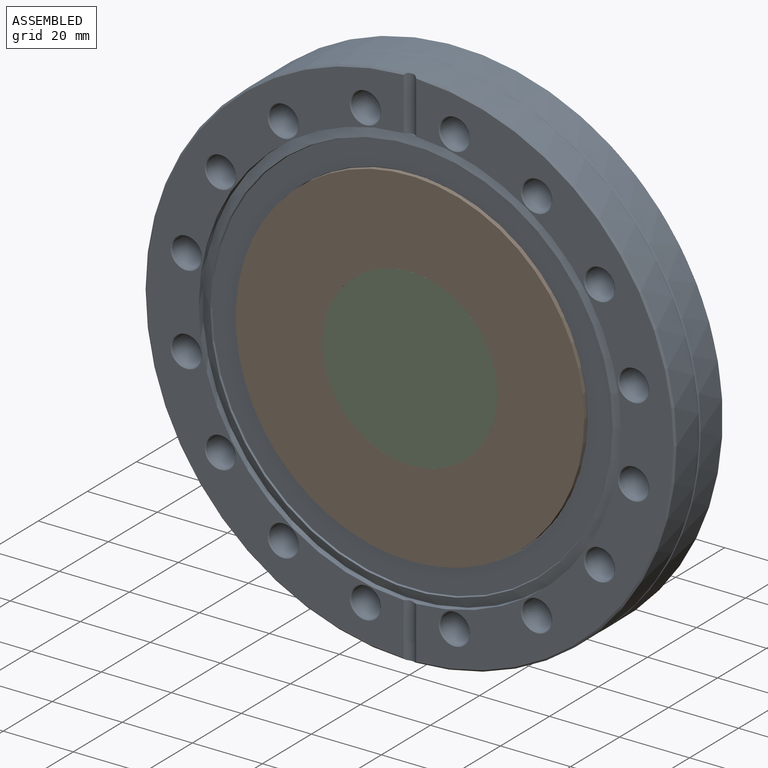
[diagram: assembled view]
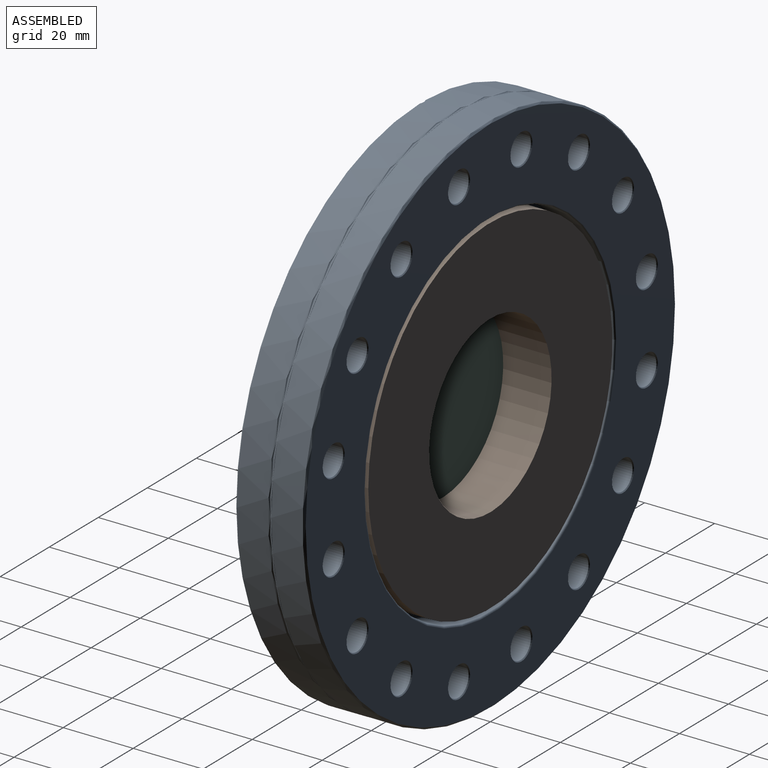
[diagram: assembled view, second angle]
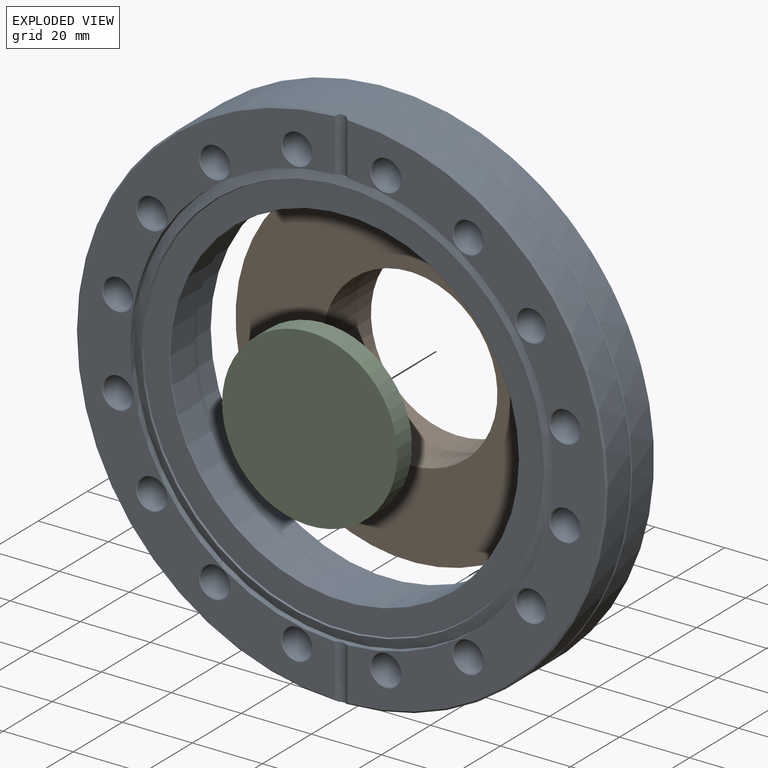
[diagram: exploded view]
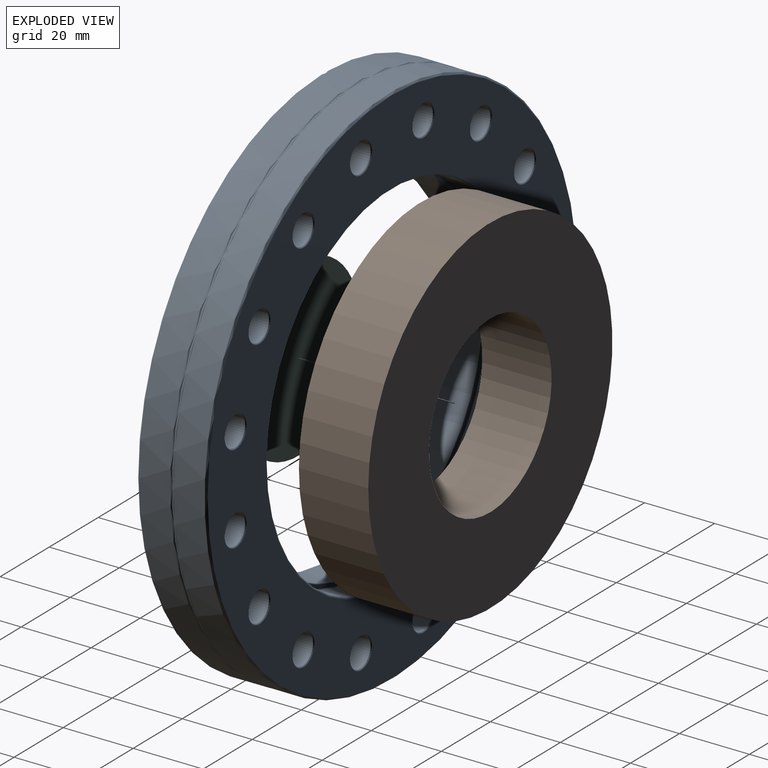
[diagram: exploded view, second angle]
ASSEMBLY  parts=3 mates=4
PART A: 71 faces, bbox 164.7x164.7x19.8 mm
  f0: cylinder r=75.82mm len=151.64mm, axis (0,0,1), area 4267.5mm2, adj f1,f2,f5,f11,f66
  f1: cylinder r=2.38mm len=15.51mm, axis (0,1,0), area 61.4mm2, adj f0,f2,f3,f4,f5,f6
  f2: cone r=75.82mm half-angle=45deg, axis (0,0,-1), area 168.5mm2, adj f0,f1,f3,f11
  f3: plane 150.58x73.54mm, normal (0,0,1), area 2637.6mm2, adj f1,f2,f4,f11,f12,f15,f18,f21
  f4: cylinder r=60.32mm len=120.65mm, axis (0,0,-1), area 644.5mm2, adj f1,f3,f6,f11,f68
  f5: cone r=75.82mm half-angle=45deg, axis (0,0,-1), area 168.5mm2, adj f0,f1,f6,f11
  f6: plane 150.58x73.54mm, normal (0,0,1), area 2637.6mm2, adj f1,f4,f5,f11,f36,f39,f42,f45
  f7: cylinder r=75.82mm len=151.64mm, axis (0,0,1), area 4267.5mm2, adj f63,f66
  f8: plane 150.62x150.62mm, normal (0,0,-1), area 8502.5mm2, adj f13,f16,f19,f22,f25,f28,f31,f34
  f9: cylinder r=50.93mm len=101.85mm, axis (0,0,-1), area 2273.2mm2, adj f60,f65
  f10: cylinder r=49.78mm len=99.57mm, axis (0,0,1), area 2963.5mm2, adj f61,f62
  f11: cylinder r=2.38mm len=15.51mm, axis (0,-1,0), area 61.4mm2, adj f0,f2,f3,f4,f5,f6
  f12: cone r=4.47mm half-angle=45deg, axis (0,0,1), area 9.8mm2, adj f3,f14
  f13: cone r=4.22mm half-angle=45deg, axis (0,0,-1), area 9.8mm2, adj f8,f14
  f14: cylinder r=4.22mm len=19.3mm, axis (0,0,1), area 511.4mm2, adj f12,f13
  f15: cone r=4.47mm half-angle=45deg, axis (0,0,1), area 9.8mm2, adj f3,f17
  f16: cone r=4.22mm half-angle=45deg, axis (0,0,-1), area 9.8mm2, adj f8,f17
  f17: cylinder r=4.22mm len=19.3mm, axis (0,0,1), area 511.4mm2, adj f15,f16
  f18: cone r=4.47mm half-angle=45deg, axis (0,0,1), area 9.8mm2, adj f3,f20
  f19: cone r=4.22mm half-angle=45deg, axis (0,0,-1), area 9.8mm2, adj f8,f20
  f20: cylinder r=4.22mm len=19.3mm, axis (0,0,1), area 511.4mm2, adj f18,f19
  f21: cone r=4.47mm half-angle=45deg, axis (0,0,1), area 9.8mm2, adj f3,f23
  f22: cone r=4.22mm half-angle=45deg, axis (0,0,-1), area 9.8mm2, adj f8,f23
  f23: cylinder r=4.22mm len=19.3mm, axis (0,0,1), area 511.4mm2, adj f21,f22
  f24: cone r=4.47mm half-angle=45deg, axis (0,0,1), area 9.8mm2, adj f3,f26
  f25: cone r=4.22mm half-angle=45deg, axis (0,0,-1), area 9.8mm2, adj f8,f26
  f26: cylinder r=4.22mm len=19.3mm, axis (0,0,1), area 511.4mm2, adj f24,f25
  f27: cone r=4.47mm half-angle=45deg, axis (0,0,1), area 9.8mm2, adj f3,f29
  f28: cone r=4.22mm half-angle=45deg, axis (0,0,-1), area 9.8mm2, adj f8,f29
  f29: cylinder r=4.22mm len=19.3mm, axis (0,0,1), area 511.4mm2, adj f27,f28
  f30: cone r=4.47mm half-angle=45deg, axis (0,0,1), area 9.8mm2, adj f3,f32
  f31: cone r=4.22mm half-angle=45deg, axis (0,0,-1), area 9.8mm2, adj f8,f32
  f32: cylinder r=4.22mm len=19.3mm, axis (0,0,1), area 511.4mm2, adj f30,f31
  f33: cone r=4.47mm half-angle=45deg, axis (0,0,1), area 9.8mm2, adj f3,f35
  f34: cone r=4.22mm half-angle=45deg, axis (0,0,-1), area 9.8mm2, adj f8,f35
  f35: cylinder r=4.22mm len=19.3mm, axis (0,0,1), area 511.4mm2, adj f33,f34
  f36: cone r=4.47mm half-angle=45deg, axis (0,0,1), area 9.8mm2, adj f6,f38
  f37: cone r=4.22mm half-angle=45deg, axis (0,0,-1), area 9.8mm2, adj f8,f38
  f38: cylinder r=4.22mm len=19.3mm, axis (0,0,1), area 511.4mm2, adj f36,f37
  f39: cone r=4.47mm half-angle=45deg, axis (0,0,1), area 9.8mm2, adj f6,f41
  f40: cone r=4.22mm half-angle=45deg, axis (0,0,-1), area 9.8mm2, adj f8,f41
  f41: cylinder r=4.22mm len=19.3mm, axis (0,0,1), area 511.4mm2, adj f39,f40
  f42: cone r=4.47mm half-angle=45deg, axis (0,0,1), area 9.8mm2, adj f6,f44
  f43: cone r=4.22mm half-angle=45deg, axis (0,0,-1), area 9.8mm2, adj f8,f44
  f44: cylinder r=4.22mm len=19.3mm, axis (0,0,1), area 511.4mm2, adj f42,f43
  f45: cone r=4.47mm half-angle=45deg, axis (0,0,1), area 9.8mm2, adj f6,f47
  f46: cone r=4.22mm half-angle=45deg, axis (0,0,-1), area 9.8mm2, adj f8,f47
  f47: cylinder r=4.22mm len=19.3mm, axis (0,0,1), area 511.4mm2, adj f45,f46
  f48: cone r=4.47mm half-angle=45deg, axis (0,0,1), area 9.8mm2, adj f6,f50
  f49: cone r=4.22mm half-angle=45deg, axis (0,0,-1), area 9.8mm2, adj f8,f50
  f50: cylinder r=4.22mm len=19.3mm, axis (0,0,1), area 511.4mm2, adj f48,f49
  f51: cone r=4.47mm half-angle=45deg, axis (0,0,1), area 9.8mm2, adj f6,f53
  f52: cone r=4.22mm half-angle=45deg, axis (0,0,-1), area 9.8mm2, adj f8,f53
  f53: cylinder r=4.22mm len=19.3mm, axis (0,0,1), area 511.4mm2, adj f51,f52
  f54: cone r=4.47mm half-angle=45deg, axis (0,0,1), area 9.8mm2, adj f6,f56
  f55: cone r=4.22mm half-angle=45deg, axis (0,0,-1), area 9.8mm2, adj f8,f56
  f56: cylinder r=4.22mm len=19.3mm, axis (0,0,1), area 511.4mm2, adj f54,f55
  f57: cone r=4.47mm half-angle=45deg, axis (0,0,1), area 9.8mm2, adj f6,f59
  f58: cone r=4.22mm half-angle=45deg, axis (0,0,-1), area 9.8mm2, adj f8,f59
  f59: cylinder r=4.22mm len=19.3mm, axis (0,0,1), area 511.4mm2, adj f57,f58
  f60: torus R=51.44mm, axis (0,0,-1), area 256.3mm2, adj f8,f9
  f61: torus R=49.99mm, axis (0,0,1), area 100mm2, adj f10,f70
  f62: torus R=50.04mm, axis (0,0,-1), area 125mm2, adj f10,f69
  f63: cone r=75.31mm half-angle=45deg, axis (0,0,1), area 341.1mm2, adj f7,f8
  f64: torus R=50.93mm, axis (0,0,1), area 261mm2, adj f65,f70
  f65: cone r=50.93mm half-angle=32deg, axis (0,0,1), area 195.7mm2, adj f9,f64
  f66: torus R=76.07mm, axis (0,0,1), area 505.7mm2, adj f0,f7
  f67: cone r=57.47mm half-angle=20deg, axis (0,0,1), area 194.9mm2, adj f68,f69
  f68: cone r=60.32mm half-angle=70deg, axis (0,0,-1), area 1125.3mm2, adj f4,f67
  f69: plane 114.57x114.57mm, normal (0,0,1), area 2442.6mm2, adj f62,f67
  f70: plane 101.85x101.85mm, normal (0,0,-1), area 297.9mm2, adj f61,f64
PART B: 4 faces, bbox 99.6x99.6x19.8 mm
  f0: cylinder r=25mm len=50mm, axis (0,0,-1), area 3112.1mm2, adj f2,f3
  f1: cylinder r=49.78mm len=99.57mm, axis (0,0,-1), area 6197.2mm2, adj f2,f3
  f2: plane 99.57x99.57mm, normal (0,0,1), area 5822.8mm2, adj f0,f1
  f3: plane 99.57x99.57mm, normal (0,0,-1), area 5822.8mm2, adj f0,f1
PART C: 3 faces, bbox 50x50x6 mm
  f0: cylinder r=25mm len=50mm, axis (0,0,-1), area 942.5mm2, adj f1,f2
  f1: plane 50x50mm, normal (0,0,1), area 1963.5mm2, adj f0
  f2: plane 50x50mm, normal (0,0,-1), area 1963.5mm2, adj f0
PLACE A rot(axis=(1,0,0),90deg) t=(0,-9.91,0)mm
PLACE B rot(axis=(0.59,-0.57,0.57),119.1deg) t=(0,0,0)mm
PLACE C rot(axis=(0,0.71,0.71),180deg) t=(0,-19.81,0)mm
MATE planar C.f0 <-> B.f0  axis (0,-1,0) through (0,-19.81,0)mm
MATE planar B.f1 <-> A.f9  axis (0,1,0) through (0,0,0)mm
MATE cylindrical B.f1 <-> A.f9  axis (0,1,0) through (0,0,0)mm
MATE cylindrical C.f0 <-> B.f0  axis (0,-1,0) through (0,-19.81,0)mm
